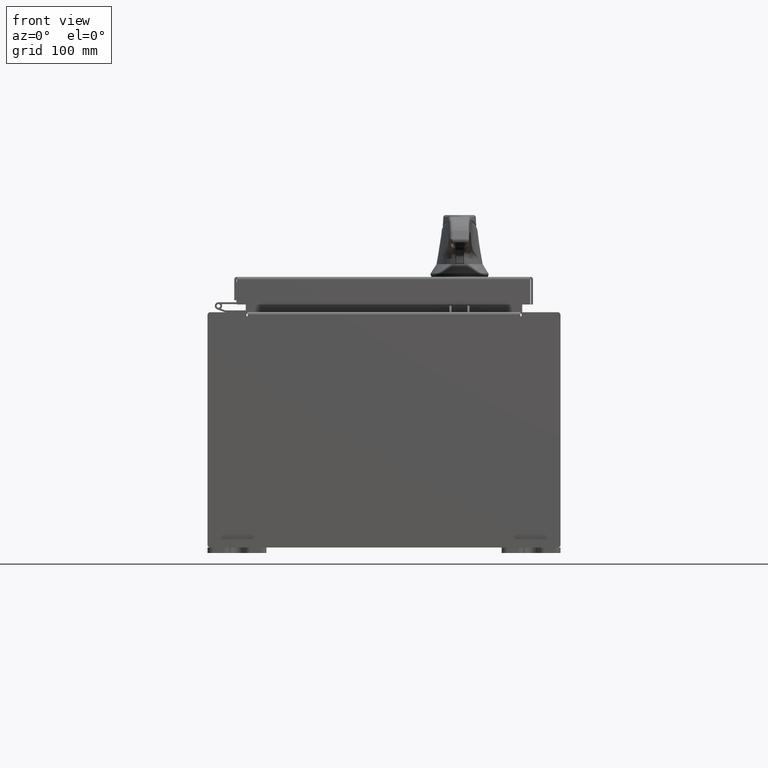
[diagram: clean part render]
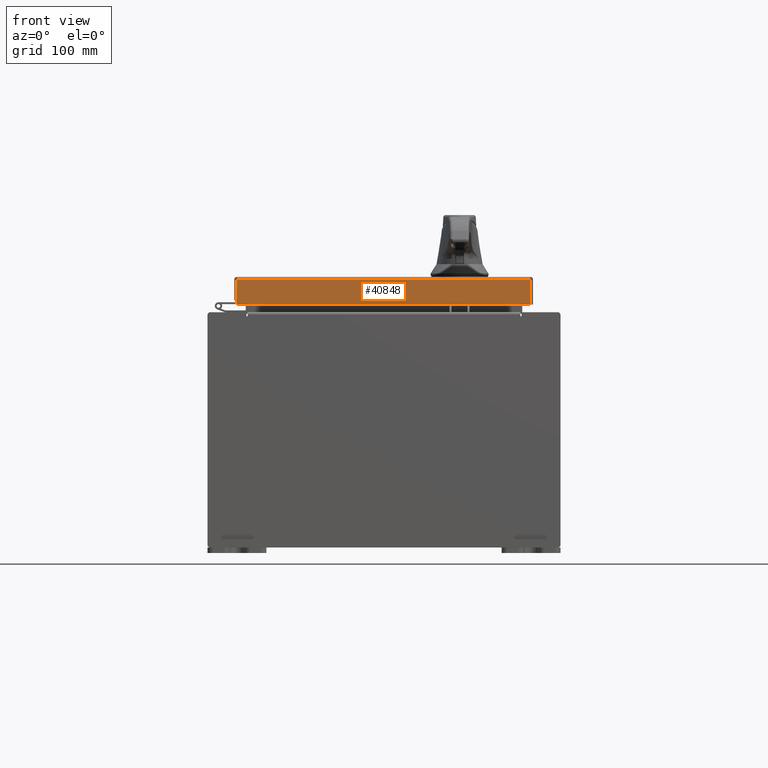
[diagram: same view with one face highlighted and labeled with its STEP entity id]
A machine part, front view. The second image highlights one B-rep face of the part: STEP entity #40848.
In plain terms, the highlighted planar face has unit normal (-0, 1, -0).
Its self-contained STEP definition (entity closure, byte-faithful):
#3125 = AXIS2_PLACEMENT_3D ( 'NONE', #55074, #46868, #57186 ) ;
#3328 = DIRECTION ( 'NONE',  ( -1.000000000000000000, 8.758115402030108600E-047, 1.344942887782721400E-016 ) ) ;
#3988 = VERTEX_POINT ( 'NONE', #34459 ) ;
#4499 = CARTESIAN_POINT ( 'NONE',  ( 5.077999999999998500, -7.094000000000000300, -0.08769999999999997200 ) ) ;
#8633 = ORIENTED_EDGE ( 'NONE', *, *, #20207, .F. ) ;
#11300 = VECTOR ( 'NONE', #68500, 39.37007874015748100 ) ;
#13517 = CARTESIAN_POINT ( 'NONE',  ( -4.989157864376269700, -7.094000000000003900, -0.9376999999999984200 ) ) ;
#20207 = EDGE_CURVE ( 'NONE', #3988, #20698, #86427, .T. ) ;
#20698 = VERTEX_POINT ( 'NONE', #78555 ) ;
#21330 = VERTEX_POINT ( 'NONE', #86783 ) ;
#34459 = CARTESIAN_POINT ( 'NONE',  ( 4.989157864376268000, -7.094000000000000300, -0.08769999999999997200 ) ) ;
#40848 = ADVANCED_FACE ( 'NONE', ( #89173 ), #106899, .F. ) ;
#46868 = DIRECTION ( 'NONE',  ( -5.108940249708801500E-031, 1.000000000000000000, -3.798629886902798700E-015 ) ) ;
#50832 = VECTOR ( 'NONE', #62107, 39.37007874015748100 ) ;
#55074 = CARTESIAN_POINT ( 'NONE',  ( 3.624282213143424100E-030, -7.094000000000000300, 2.720829407370003600E-014 ) ) ;
#57186 = DIRECTION ( 'NONE',  ( 0.0000000000000000000, 3.798629886902798700E-015, 1.000000000000000000 ) ) ;
#58683 = ORIENTED_EDGE ( 'NONE', *, *, #94963, .T. ) ;
#60383 = CARTESIAN_POINT ( 'NONE',  ( -4.989157864376269700, -7.094000000000000300, 2.720829407370003600E-014 ) ) ;
#60981 = CARTESIAN_POINT ( 'NONE',  ( 5.077999999999998500, -7.094000000000003900, -0.9376999999999997600 ) ) ;
#61472 = EDGE_LOOP ( 'NONE', ( #82528, #58683, #72303, #8633 ) ) ;
#62107 = DIRECTION ( 'NONE',  ( 1.000000000000000000, 5.108940249708801500E-031, -1.959784689483913500E-045 ) ) ;
#64036 = LINE ( 'NONE', #60981, #86075 ) ;
#68500 = DIRECTION ( 'NONE',  ( 0.0000000000000000000, -3.798629886902798700E-015, -1.000000000000000000 ) ) ;
#72303 = ORIENTED_EDGE ( 'NONE', *, *, #79745, .F. ) ;
#77629 = LINE ( 'NONE', #4499, #50832 ) ;
#78555 = CARTESIAN_POINT ( 'NONE',  ( 4.989157864376268000, -7.094000000000003900, -0.9376999999999997600 ) ) ;
#79745 = EDGE_CURVE ( 'NONE', #20698, #94114, #64036, .T. ) ;
#82528 = ORIENTED_EDGE ( 'NONE', *, *, #89144, .F. ) ;
#86075 = VECTOR ( 'NONE', #3328, 39.37007874015748100 ) ;
#86427 = LINE ( 'NONE', #97275, #89028 ) ;
#86783 = CARTESIAN_POINT ( 'NONE',  ( -4.989157864376269700, -7.094000000000000300, -0.08769999999999997200 ) ) ;
#89028 = VECTOR ( 'NONE', #105378, 39.37007874015748100 ) ;
#89144 = EDGE_CURVE ( 'NONE', #21330, #3988, #77629, .T. ) ;
#89173 = FACE_OUTER_BOUND ( 'NONE', #61472, .T. ) ;
#94114 = VERTEX_POINT ( 'NONE', #13517 ) ;
#94963 = EDGE_CURVE ( 'NONE', #21330, #94114, #96388, .T. ) ;
#96388 = LINE ( 'NONE', #60383, #11300 ) ;
#97275 = CARTESIAN_POINT ( 'NONE',  ( 4.989157864376268000, -7.094000000000000300, -0.07469999999999972500 ) ) ;
#105378 = DIRECTION ( 'NONE',  ( -0.0000000000000000000, -3.798629886902798700E-015, -1.000000000000000000 ) ) ;
#106899 = PLANE ( 'NONE',  #3125 ) ;